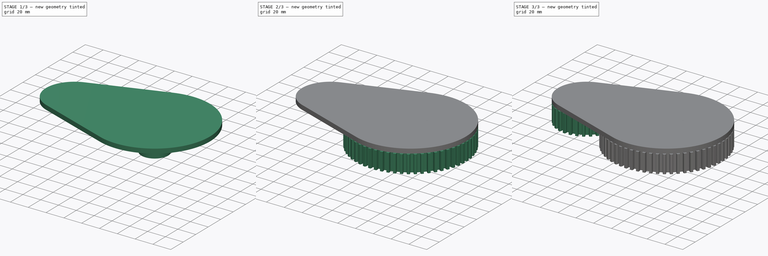
[diagram: build sequence overview — one tinted view per stage of 3, left to right]
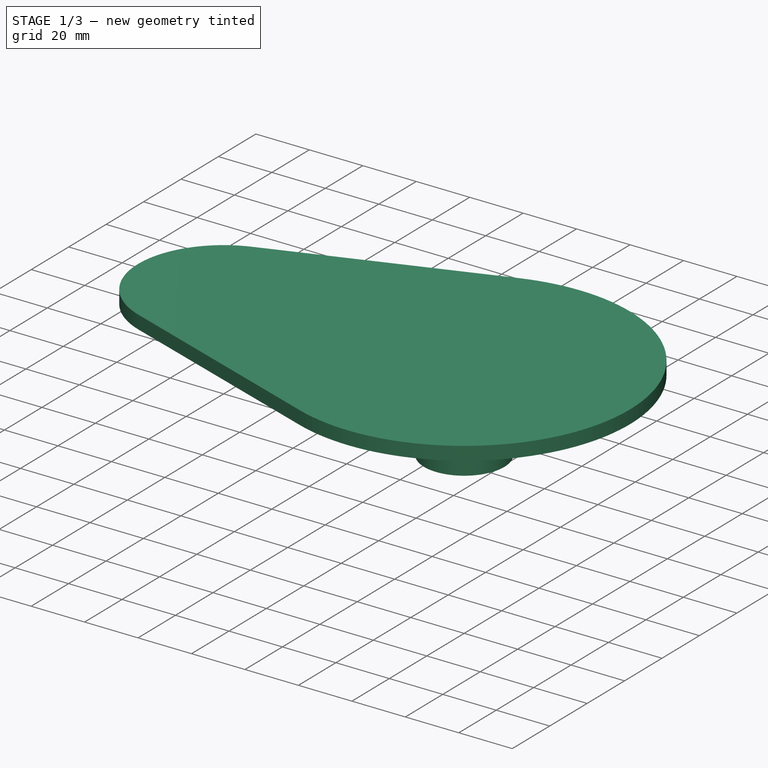
[diagram: stage 1 of 3 — iso view after this stage's code; geometry added in this stage tinted green]
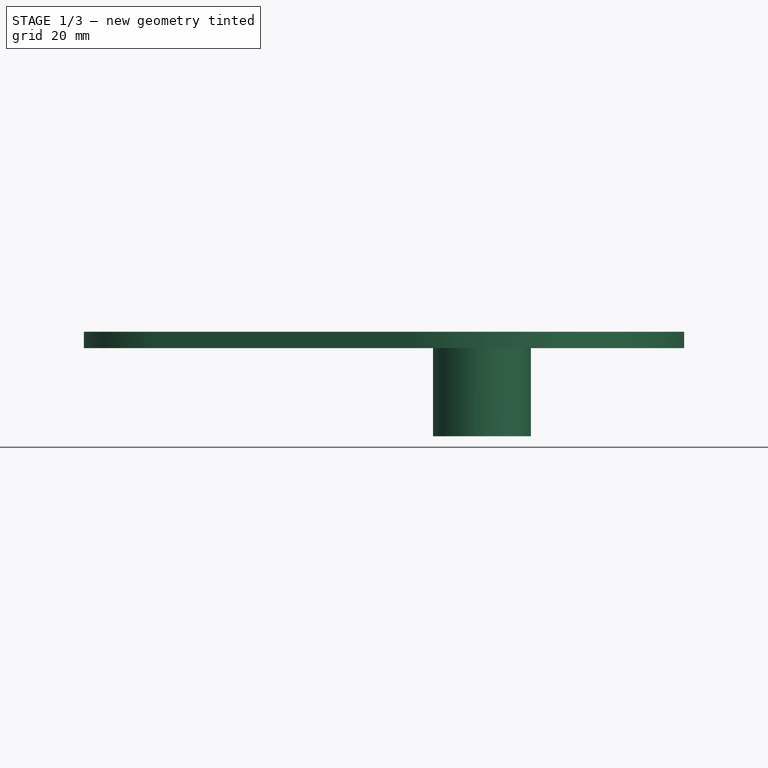
[diagram: stage 1 of 3 — front view after this stage's code; geometry added in this stage tinted green]
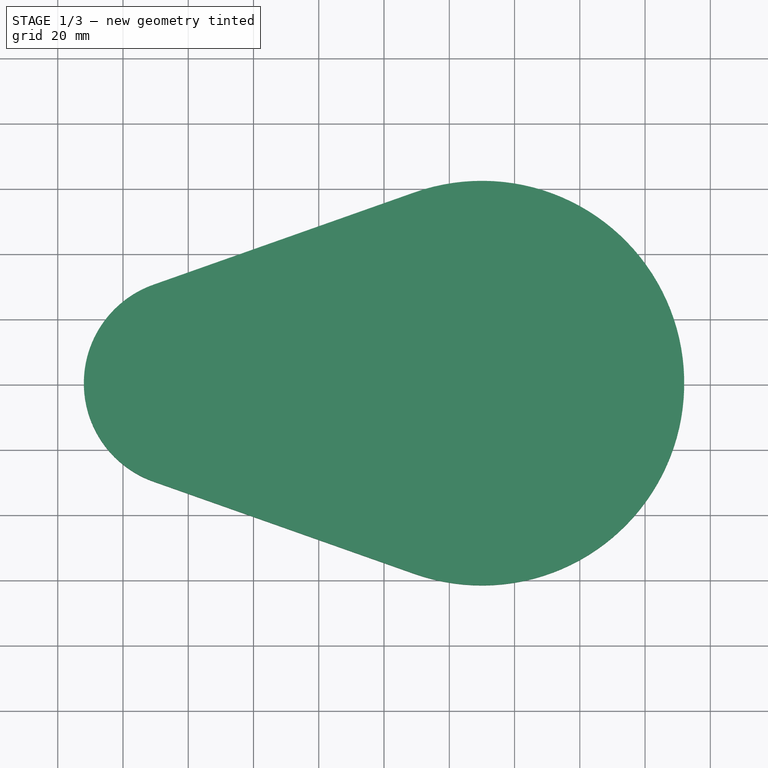
[diagram: stage 1 of 3 — top view after this stage's code; geometry added in this stage tinted green]
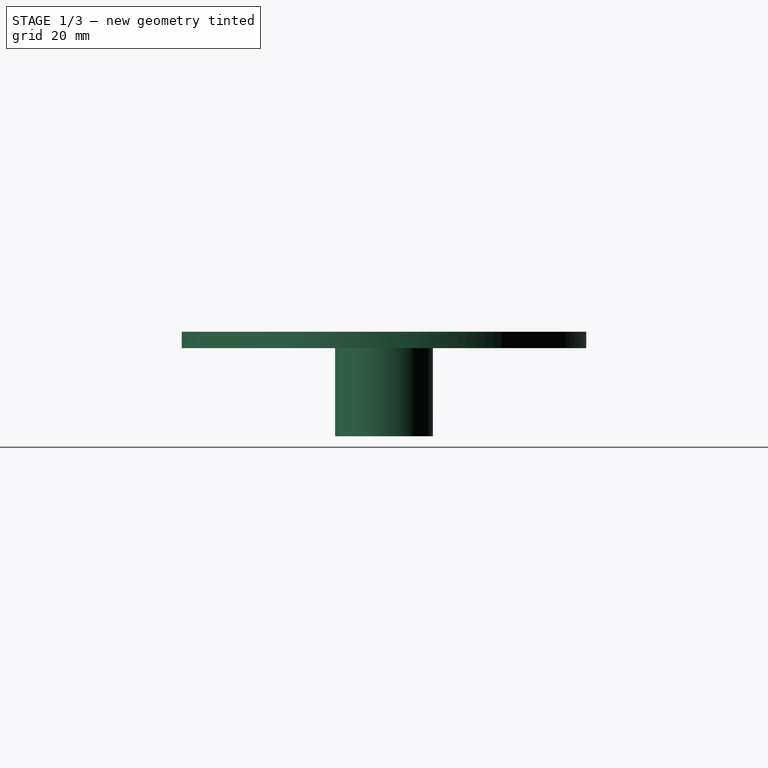
[diagram: stage 1 of 3 — right view after this stage's code; geometry added in this stage tinted green]
FCSTD DOCUMENT  (FreeCAD 0.19R)
Label: ENGRENAGEM-01
License: All rights reserved
LicenseURL: http://en.wikipedia.org/wiki/All_rights_reserved
objects: Sketcher::SketchObject×3, Part::FeaturePython×2, Part::Revolution×2, Part::MultiFuse×2, Spreadsheet::Sheet×1, Part::Extrusion×1, Part::Mirroring×1
note: 11 computed .brp shape members not serialized (recipe doc carries the construction recipe); baked Part::Feature solids carry a one-line shape summary decoded from their .brp

FEATURE [Spreadsheet::Sheet] Spreadsheet
  cells = A1=Variavel; B1=E1; C1=E2; A2=raio do eixo; B2(eixo1)==raio1 / 4; C2(eixo2)==raio2 / 4; A3=raio; B3(raio1)=30; C3(raio2)=60; A4=diametro; B4(diametro1)==2 * raio1; C4(diametro2)==2 * raio2; A5=passo; B5(passo1)==modulo1 * pi; C5(passo2)==modulo2 * pi; A6=Entre-eixos; B6(entreeixos)==(diametro1 + diametro2) / 2; A7=espessura da base; B7(espessurabase)=5; A8=espessura da roda; B8(espessura)=20; A9=espessura do dente; B9(edente1)==0.4875 * passo1; C9(edente2)==0.4875 * passo1; A10=intervalo dentes; B10(intervalo1)==0.5125 * passo1; C10(intervalo2)==0.5125 * passo2; A11=folga lateral; B11(folga)=1; A12=módulo; B12(modulo1)==diametro1 / dentes1; C12(modulo2)==diametro2 / dentes2; A13=dentes; B13(dentes1)=30; C13(dentes2)=60; A14=altura do dente; B14(altura1)==2.167 * modulo1; C14(altura2)==2.167 * modulo2; A15=ressalto do dente; B15(ressalto1)==modulo1; C15(ressalto2)==modulo2; A16=cavidade do dente; B16(cavidade1)==1.167 * modulo1; C16(cavidade2)==1.167 * modulo2; A17=diametro cabeca; B17(cabeca1)==modulo1 * (dentes1 + 2); C17(cabeca2)==modulo2 * (dentes2 + 2); A18=diametro pe; B18(pe1)==modulo1 * (dentes1 + dentes2) / 2; A19=angulo de pressao; B19(angulo1)==90 / dentes1; C19(angulo2)==90 / dentes2
FEATURE [Sketcher::SketchObject] Sketch
  expr: Constraints[6] = Spreadsheet.eixo2
  expr: Constraints[7] = Spreadsheet.cabeca1 / 2
  expr: Constraints[8] = Spreadsheet.cabeca2 / 2
  expr: Constraints[9] = Spreadsheet.entreeixos
  sketch-geometry (5):
    g0: ArcOfCircle CenterX=0 CenterY=0 CenterZ=0 NormalX=0 NormalY=0 NormalZ=1 AngleXU=0 Radius=32 StartAngle=1.91063 EndAngle=4.37255
    g1: Circle CenterX=90 CenterY=0 CenterZ=0 NormalX=0 NormalY=0 NormalZ=1 AngleXU=0 Radius=15
    g2: ArcOfCircle CenterX=90 CenterY=0 CenterZ=0 NormalX=0 NormalY=0 NormalZ=1 AngleXU=0 Radius=62 StartAngle=4.37255 EndAngle=8.19382
    g3: LineSegment StartX=-10.6667 StartY=30.1699 StartZ=0 EndX=69.3333 EndY=58.4542 EndZ=0
    g4: LineSegment StartX=-10.6667 StartY=-30.1699 StartZ=0 EndX=69.3333 EndY=-58.4542 EndZ=0
  constraints (11):
    c: PointOnObject(g1,g-1)
    c: Coincident(g2,g1)
    c: Tangent(g0,g4) = -1.5708
    c: Tangent(g2,g4) = -1.5708
    c: Tangent(g0,g3) = 1.5708
    c: Tangent(g2,g3) = 1.5708
    c: Radius(g1) = 15
    c: Radius(g0) = 32
    c: Radius(g2) = 62
    c: DistanceX(g0,g1) = 90
    c: Coincident(g0,g-1)
FEATURE [Part::Extrusion] Extrude  label="Base"
  Base = -> Sketch
  Dir = (0,0,1)
  DirMode = 2
  FaceMakerClass = Part::FaceMakerBullseye
  LengthFwd = 5
  LengthRev = 0
  Placement = pos=(0,0,0) rot=(0,0,1;188.496rad)
  Solid = true
  Symmetric = false
  expr: LengthFwd = Spreadsheet.espessurabase
  expr: .Placement.Rotation.Angle = 360 / 2 * Spreadsheet.dentes2
FEATURE [Sketcher::SketchObject] Sketch001
  Placement = pos=(0,0,0) rot=(1,0,0;1.5708rad)
  expr: Constraints[9] = Spreadsheet.eixo1
  expr: Constraints[10] = 2 * (Spreadsheet.espessurabase + Spreadsheet.folga) + Spreadsheet.espessura
  sketch-geometry (4):
    g0: LineSegment StartX=0 StartY=0 StartZ=0 EndX=7.5 EndY=0 EndZ=0
    g1: LineSegment StartX=7.5 StartY=0 StartZ=0 EndX=7.5 EndY=32 EndZ=0
    g2: LineSegment StartX=7.5 StartY=32 StartZ=0 EndX=0 EndY=32 EndZ=0
    g3: LineSegment StartX=0 StartY=32 StartZ=0 EndX=0 EndY=0 EndZ=0
  constraints (11):
    c: Coincident(g0,g1)
    c: Coincident(g1,g2)
    c: Coincident(g2,g3)
    c: Coincident(g3,g0)
    c: Horizontal(g0)
    c: Horizontal(g2)
    c: Vertical(g1)
    c: Vertical(g3)
    c: Coincident(g0,g-1)
    c: DistanceX(g2,g2) = 7.5
    c: DistanceY(g1,g1) = 32
FEATURE [Sketcher::SketchObject] Sketch002
  Placement = pos=(0,0,0) rot=(1,0,0;1.5708rad)
  expr: Constraints[9] = Spreadsheet.entreeixos
  expr: Constraints[10] = Spreadsheet.eixo2
  expr: Constraints[11] = 2 * (Spreadsheet.espessurabase + Spreadsheet.folga) + Spreadsheet.espessura
  sketch-geometry (4):
    g0: LineSegment StartX=90 StartY=0 StartZ=0 EndX=105 EndY=0 EndZ=0
    g1: LineSegment StartX=105 StartY=0 StartZ=0 EndX=105 EndY=32 EndZ=0
    g2: LineSegment StartX=105 StartY=32 StartZ=0 EndX=90 EndY=32 EndZ=0
    g3: LineSegment StartX=90 StartY=32 StartZ=0 EndX=90 EndY=0 EndZ=0
  constraints (12):
    c: Coincident(g0,g1)
    c: Coincident(g1,g2)
    c: Coincident(g2,g3)
    c: Coincident(g3,g0)
    c: Horizontal(g0)
    c: Horizontal(g2)
    c: Vertical(g1)
    c: Vertical(g3)
    c: PointOnObject(g0,g-1)
    c: DistanceX(g-1,g0) = 90
    c: DistanceX(g2,g2) = 15
    c: DistanceY(g1,g1) = 32
FEATURE [Part::Revolution] Revolve001  label="Eixo2"
  Angle = 360
  Axis = (0,-2e-16,-1)
  AxisLink = -> Sketch002 [Edge4]
  Base = (90,0,0)
  FaceMakerClass = Part::FaceMakerBullseye
  Solid = true
  Source = -> Sketch002
  Symmetric = false
FEATURE [Part::Mirroring] Part__Mirroring  label="Base (Mirror #1)"
  Base = (0,0,16)
  Normal = (0,0,1)
  Source = -> Extrude
  expr: .Base.z = (2 * (Spreadsheet.espessurabase + Spreadsheet.folga) + Spreadsheet.espessura) / 2
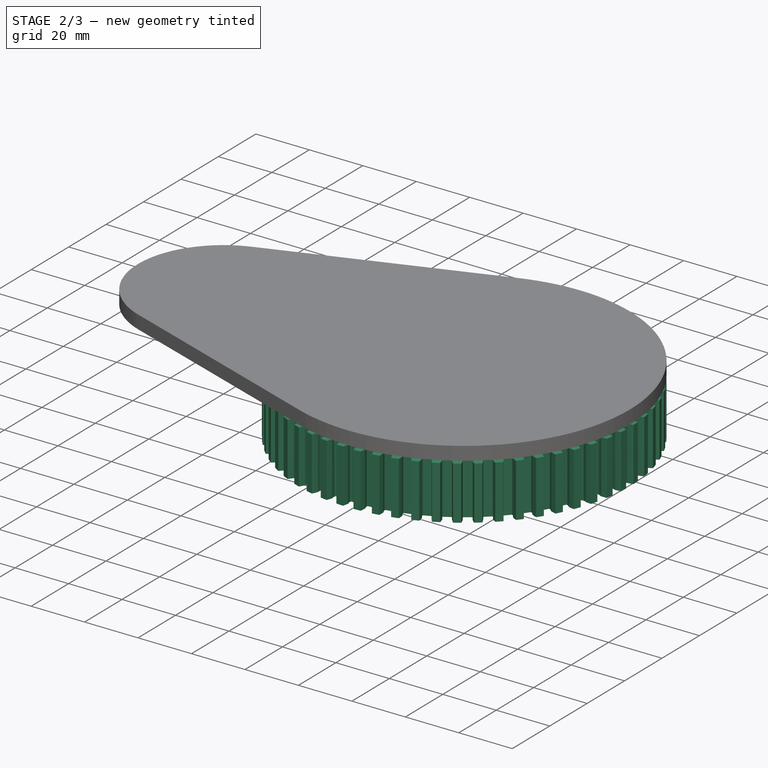
[diagram: stage 2 of 3 — iso view after this stage's code; geometry added in this stage tinted green]
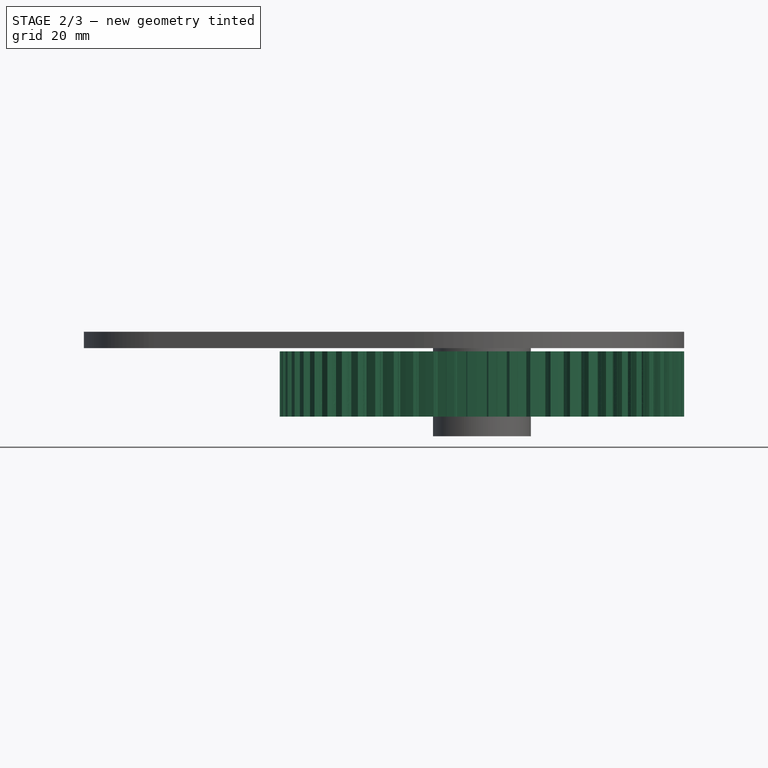
[diagram: stage 2 of 3 — front view after this stage's code; geometry added in this stage tinted green]
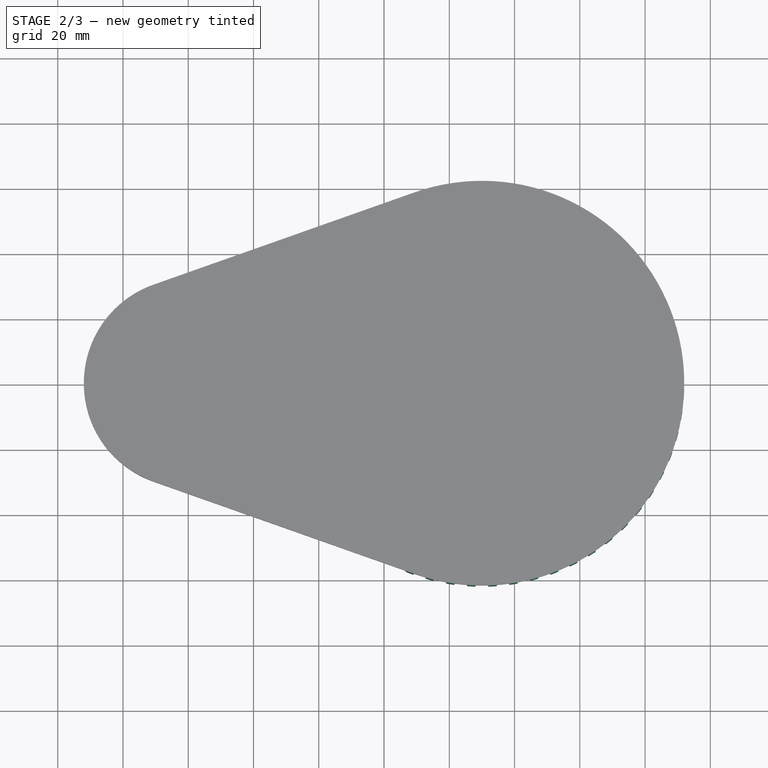
[diagram: stage 2 of 3 — top view after this stage's code; geometry added in this stage tinted green]
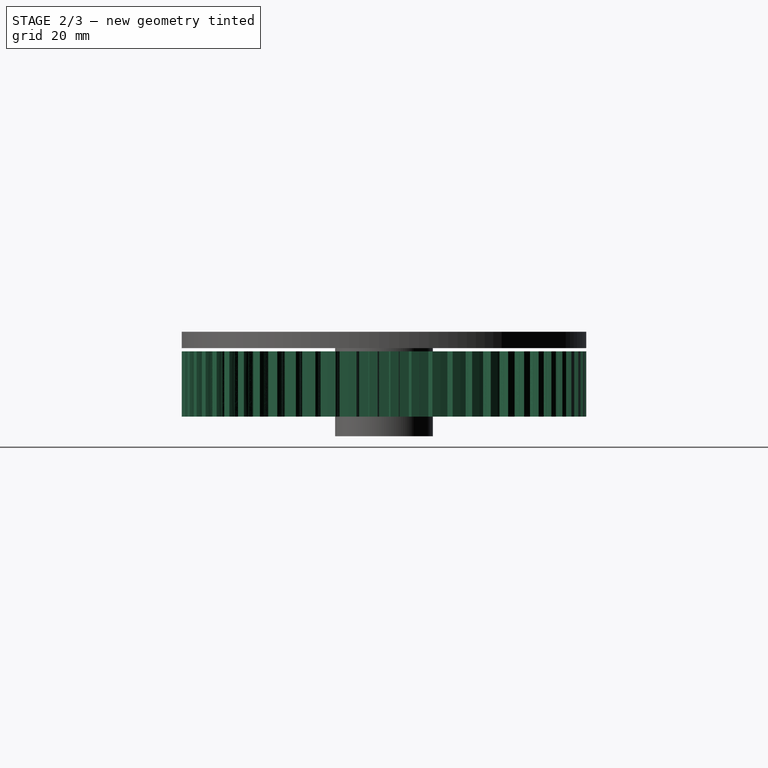
[diagram: stage 2 of 3 — right view after this stage's code; geometry added in this stage tinted green]
FEATURE [Part::FeaturePython] involutegear001  # WARN: FeaturePython — macro-defined, semantics opaque (R4)
  Placement = pos=(90,0,6) rot=(0,0,1;0.05236rad)
  backlash = 0
  beta = 0
  clearance = 0
  double_helix = false
  dw = 120
  head = 0
  height = 20
  module = 2
  numpoints = 6
  pressure_angle = -1.5
  properties_from_tool = true
  reversed_backlash = false
  shift = 0
  simple = false
  teeth = 60
  transverse_pitch = 6.28319
  undercut = true
  version = 0.0.3
  expr: .Placement.Base.x = Spreadsheet.entreeixos
  expr: .Placement.Base.z = Spreadsheet.espessurabase + Spreadsheet.folga
  expr: teeth = Spreadsheet.dentes2
  expr: module = Spreadsheet.modulo2
  expr: height = Spreadsheet.espessura
  expr: .Placement.Rotation.Angle = 0.5 * 360 / Spreadsheet.dentes2
  expr: pressure_angle = -Spreadsheet.angulo2
FEATURE [Part::MultiFuse] Fusion001
  Refine = true
  Shapes = -> [involutegear001,Revolve001]
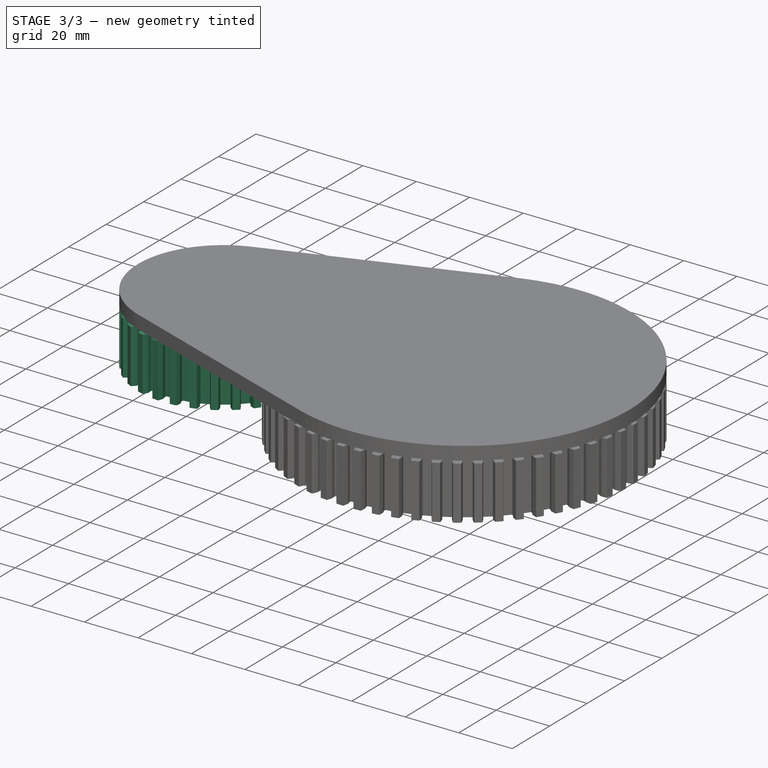
[diagram: stage 3 of 3 — iso view after this stage's code; geometry added in this stage tinted green]
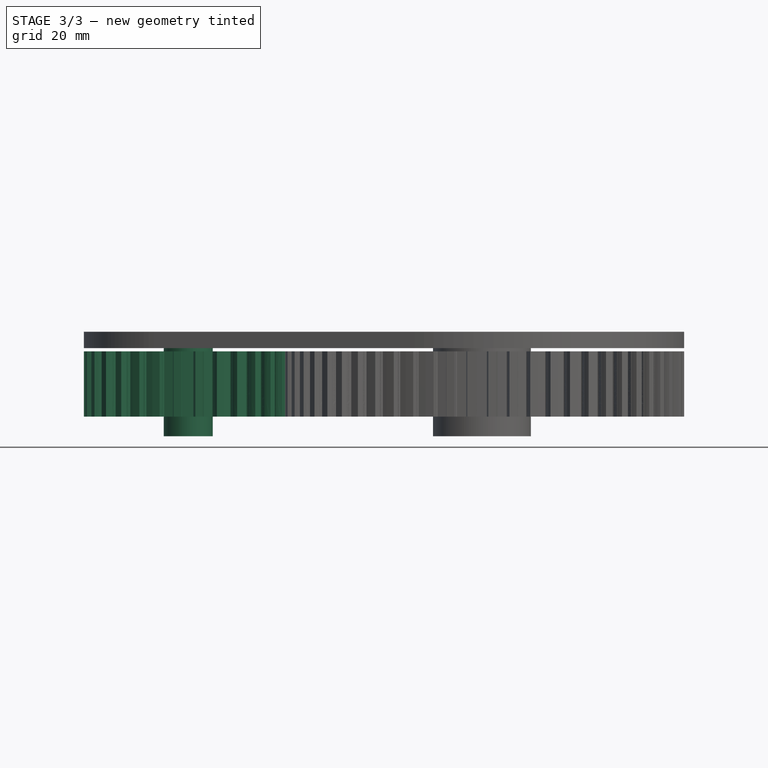
[diagram: stage 3 of 3 — front view after this stage's code; geometry added in this stage tinted green]
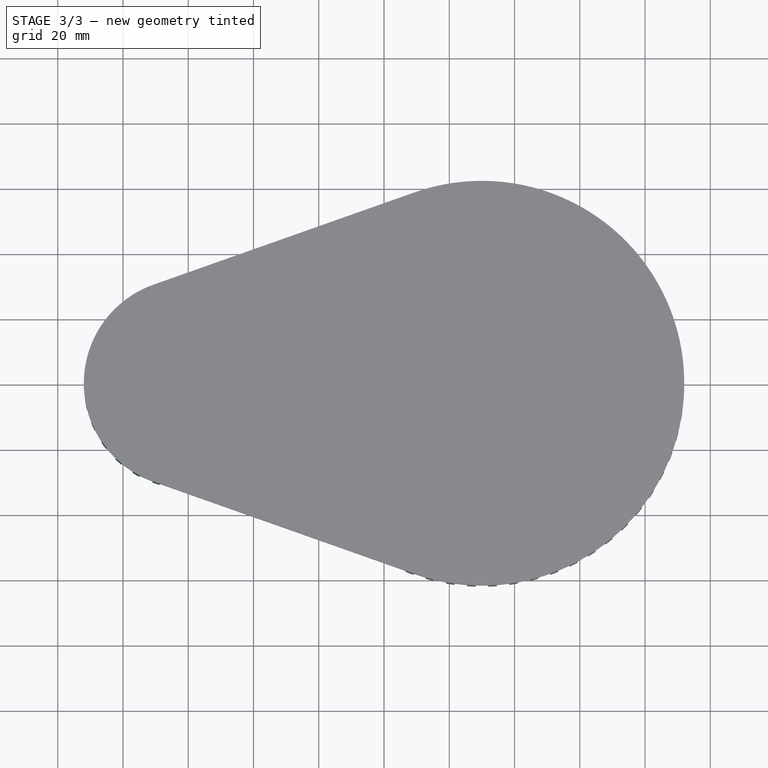
[diagram: stage 3 of 3 — top view after this stage's code; geometry added in this stage tinted green]
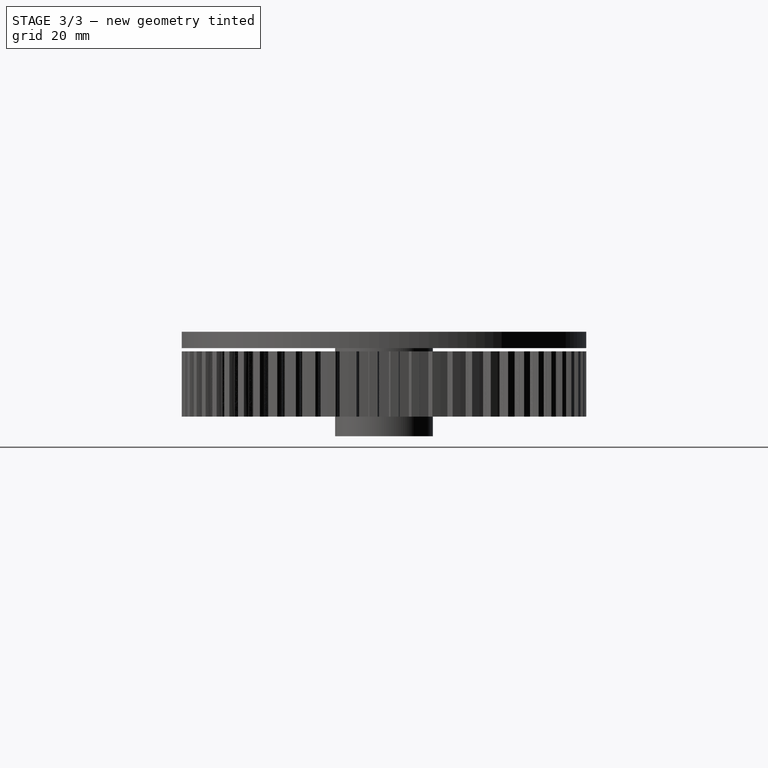
[diagram: stage 3 of 3 — right view after this stage's code; geometry added in this stage tinted green]
FEATURE [Part::FeaturePython] involutegear  # WARN: FeaturePython — macro-defined, semantics opaque (R4)
  Placement = pos=(0,0,6) rot=(0,0,1;0rad)
  backlash = 0
  beta = 0
  clearance = 0
  double_helix = false
  dw = 60
  head = 0
  height = 20
  module = 2
  numpoints = 6
  pressure_angle = -3
  properties_from_tool = true
  reversed_backlash = false
  shift = 0
  simple = false
  teeth = 30
  transverse_pitch = 6.28319
  undercut = true
  version = 0.0.3
  expr: .Placement.Base.z = Spreadsheet.espessurabase + Spreadsheet.folga
  expr: height = Spreadsheet.espessura
  expr: pressure_angle = -Spreadsheet.angulo1
  expr: teeth = Spreadsheet.dentes1
  expr: module = Spreadsheet.modulo1
FEATURE [Part::Revolution] Revolve  label="Eixo 1"
  Angle = 360
  Axis = (0,-2e-16,-1)
  AxisLink = -> Sketch001 [Edge4]
  Base = (0,0,0)
  FaceMakerClass = Part::FaceMakerBullseye
  Solid = true
  Source = -> Sketch001
  Symmetric = false
FEATURE [Part::MultiFuse] Fusion
  Refine = true
  Shapes = -> [involutegear,Revolve]
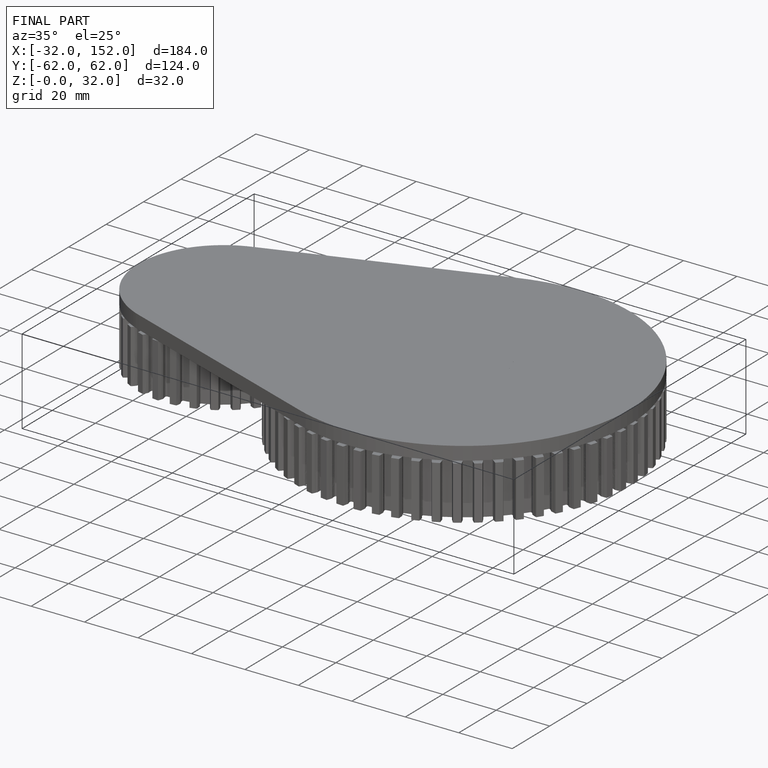
[diagram: finished part — iso view with bounding-box wireframe]
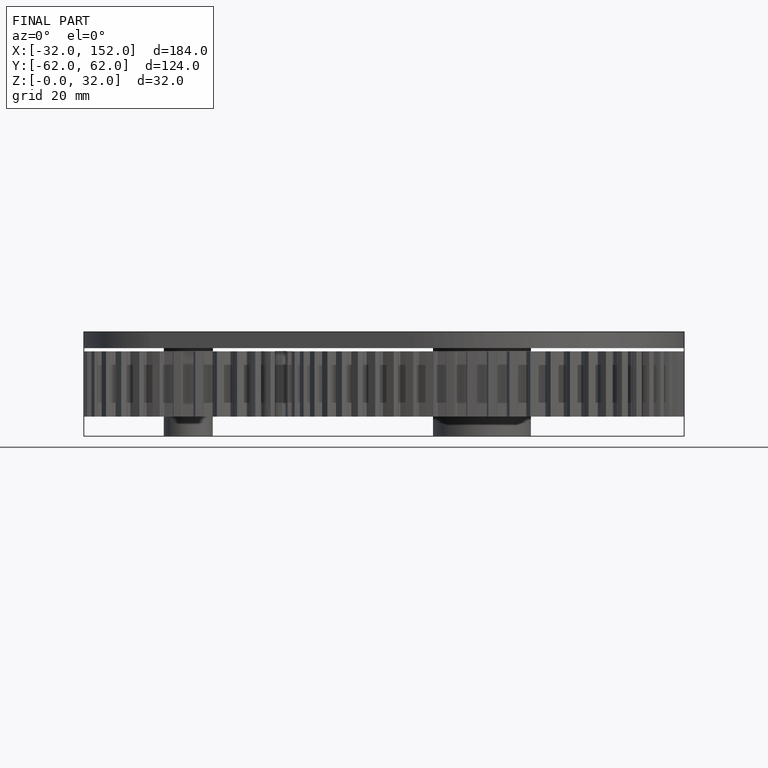
[diagram: finished part — front view with bounding-box wireframe]
